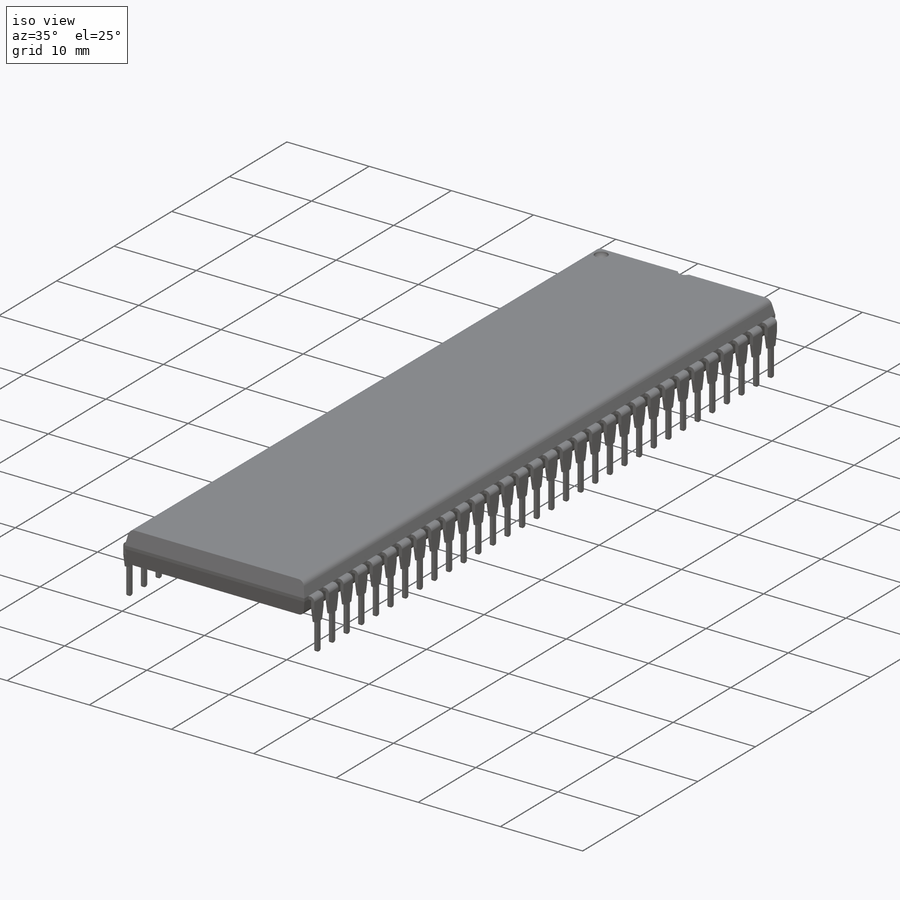
[diagram: iso view]
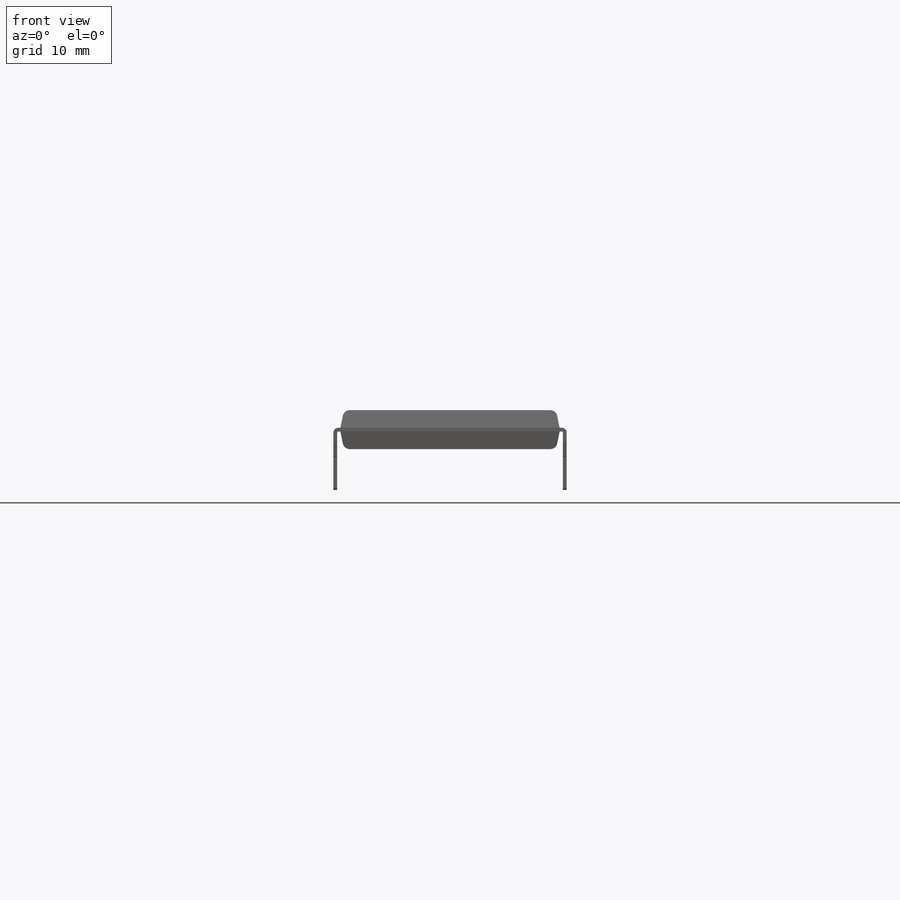
[diagram: front view]
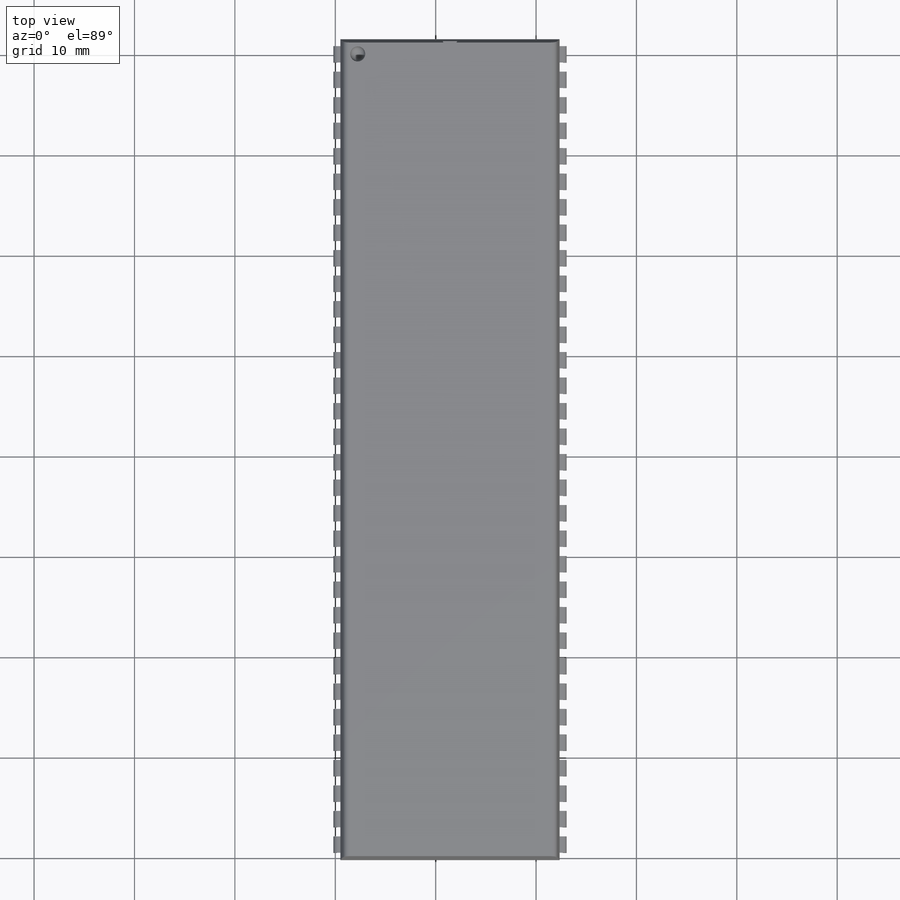
[diagram: top view]
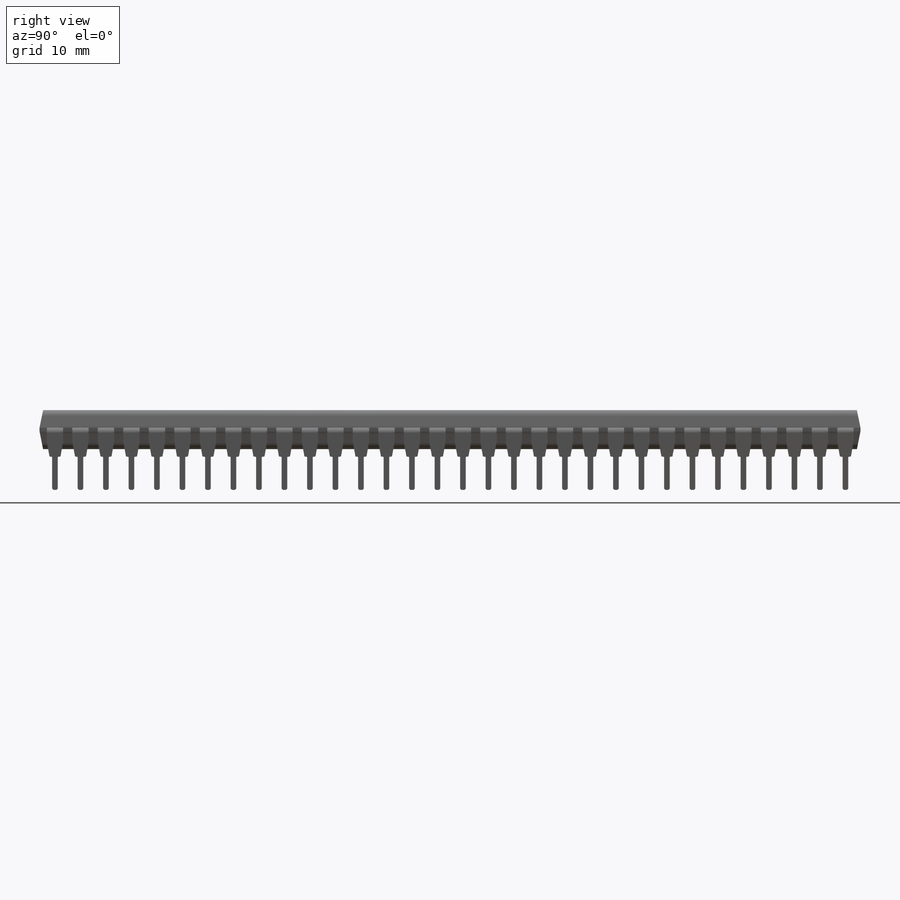
[diagram: right view]
SOLIDWORKS PART (.sldprt)
format: sldprt  version: not decoded by parser v0  size: 1,472,512 bytes
history: native  units: mm
features: sketch x10, extrude x4, cut_extrude x4, fillet x2, plane x2, material x1, cut_revolve x1, mirror x1, pattern_linear x1 (+12 scaffold rows collapsed)
feature tree (38):
  scaffold x12  (default folders/planes/origin — collapsed)
  material  "Material <not specified>"
  sketch  "Sketch1"  dims[D1=0.78mm D2=3.88mm D3=21.84mm D4=0.51mm]
  extrude  "Base-Extrude"  Depth=80.28mm
  sketch  "Sketch2"  dims[c1.D2=0.7mm c1.D1=3.18mm c2.D1=168.578deg c2.D3=0.19mm]
  cut_extrude  "Cut-Extrude1"  [1 undecoded]
  sketch  "Sketch3"  dims[c1.D1=0.38mm c2.D1=168.578deg c2.D2=2.0mm]
  cut_extrude  "Cut-Extrude2"  [1 undecoded]
  sketch  "Sketch5"  dims[D1=1.63mm D2=0.815mm]
  extrude  "Boss-Extrude3"  Depth=0.7mm
  sketch  "Sketch9"  dims[D1=1.5mm]
  cut_extrude  "Cut-Extrude6"  Depth=0.7mm
  sketch  "Sketch8"  dims[D1=0.75mm]
  cut_revolve  "Cut-Revolve1"  Angle=360deg
  sketch  "Sketch4"  dims[D1=0.19mm D2=0.38mm D3=0.56mm D4=0.28mm]
  sketch  "Sketch6"
  extrude  "Boss-Extrude4"  Depth=2.53mm
  extrude  "Boss-Extrude5"  Depth=3.28mm
  sketch  "Sketch7"  dims[D1=1.52mm D2=0.05mm D3=0.55mm D4=0.3mm D5=0.13mm D6=0.5mm]
  cut_extrude  "Cut-Extrude5"  Depth=0.38mm
  fillet  "Fillet1"  Radius=0.49mm
  fillet  "Fillet2"  Radius=0.11mm
  plane  "Plane4"  Offset=10.92mm
  plane  "Plane5"  Offset=30.71mm
  mirror  "Mirror1"
  pattern_linear  "LPattern1"  Count1=32 Count2=1 Spacing1=2.54mm Spacing2=50mm
  sketch  "Component_Outline"
decode coverage: 18 of 23 modeling features carry decoded parameters
note: 2 parameter values undecoded
note: suppression state not decoded; provenance and decode notes live in map.json
